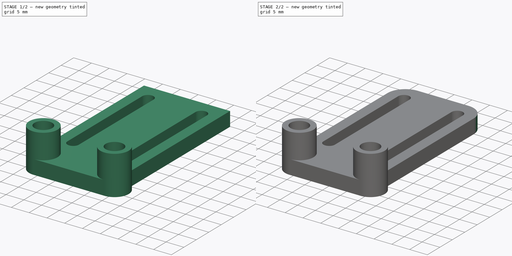
[diagram: build sequence overview — one tinted view per stage of 2, left to right]
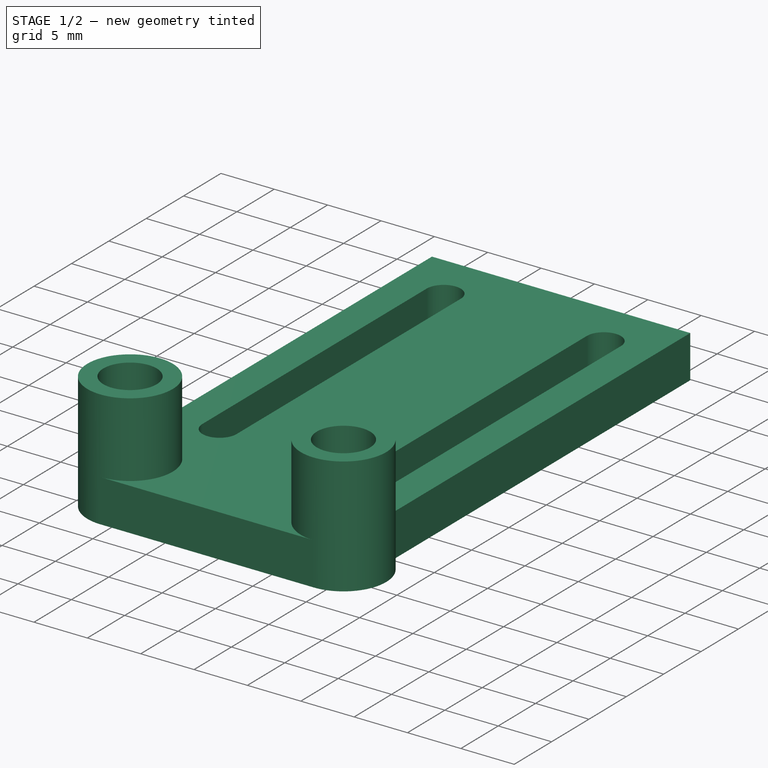
[diagram: stage 1 of 2 — iso view after this stage's code; geometry added in this stage tinted green]
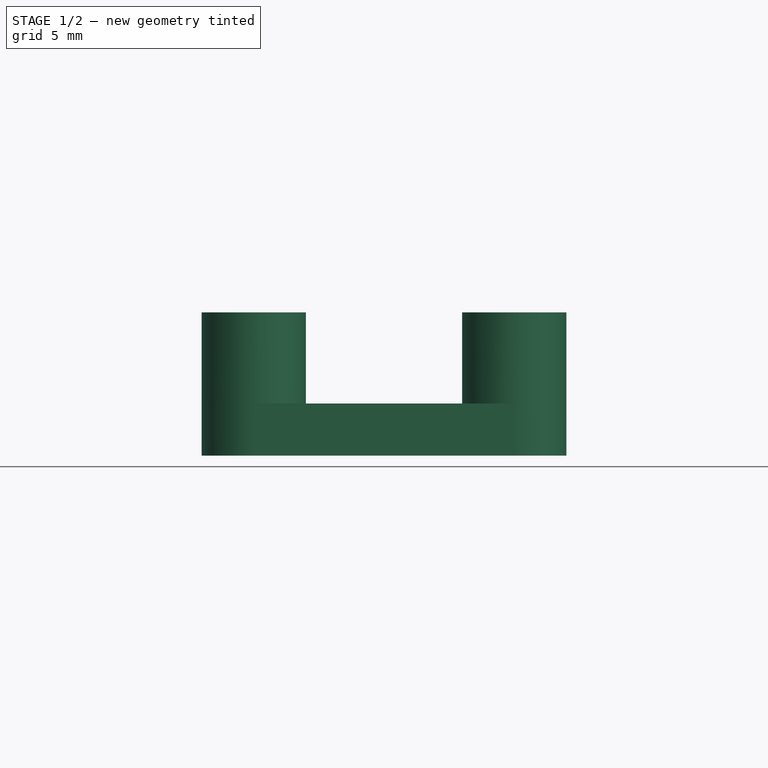
[diagram: stage 1 of 2 — front view after this stage's code; geometry added in this stage tinted green]
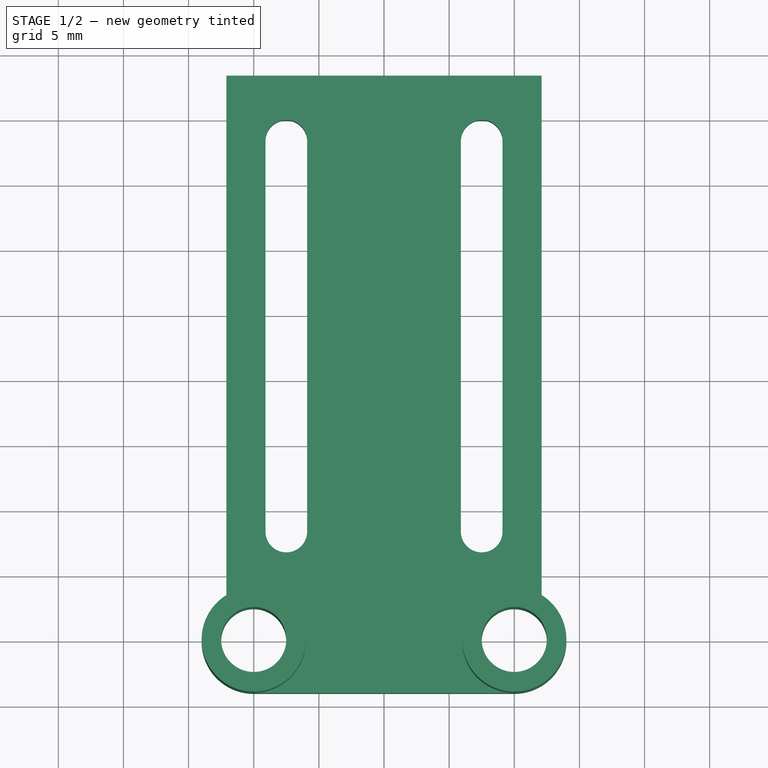
[diagram: stage 1 of 2 — top view after this stage's code; geometry added in this stage tinted green]
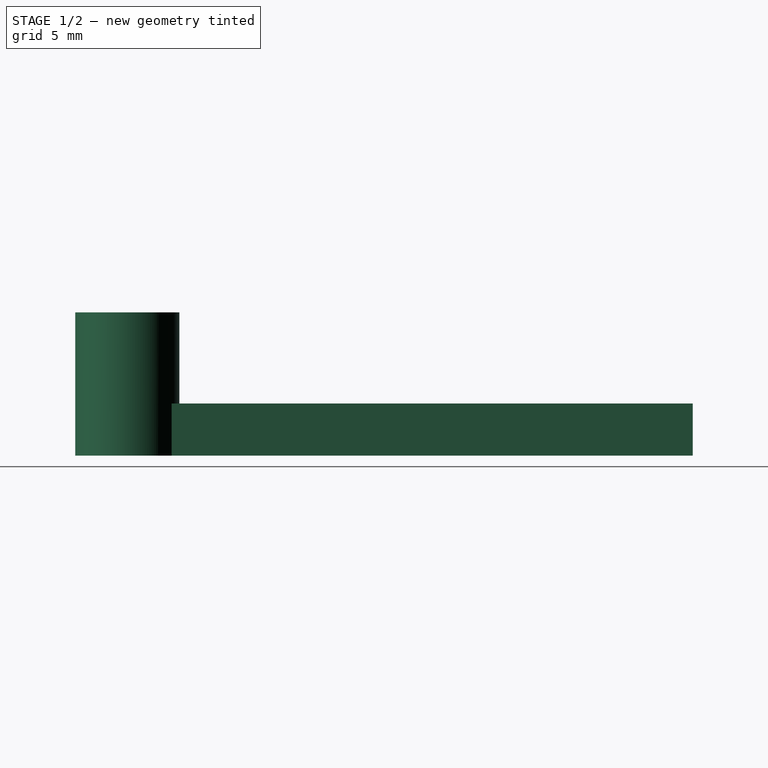
[diagram: stage 1 of 2 — right view after this stage's code; geometry added in this stage tinted green]
FCSTD DOCUMENT  (FreeCAD 1.0R38641 +468 (Git))
Label: endswitch_holder
License: All rights reserved
LicenseURL: https://en.wikipedia.org/wiki/All_rights_reserved
objects: Sketcher::SketchObject×2, PartDesign::Pad×2, PartDesign::Fillet×1, PartDesign::Body×1
note: 14 computed .brp shape members not serialized (recipe doc carries the construction recipe); baked Part::Feature solids carry a one-line shape summary decoded from their .brp

FEATURE [Sketcher::SketchObject] Sketch
  ArcFitTolerance = 1e-06
  AttachmentSupport = -> [XY_Plane]
  FullyConstrained = true
  MakeInternals = false
  MapMode = 5
  sketch-geometry (18):
    g0: Circle [constr] CenterX=-7.5 CenterY=38.4044 CenterZ=0 NormalX=0 NormalY=0 NormalZ=1 AngleXU=0 Radius=1.6
    g1: Circle [constr] CenterX=7.5 CenterY=38.4044 CenterZ=0 NormalX=0 NormalY=0 NormalZ=1 AngleXU=0 Radius=1.6
    g2: Circle CenterX=-10 CenterY=0 CenterZ=0 NormalX=0 NormalY=0 NormalZ=1 AngleXU=0 Radius=2.5
    g3: Circle CenterX=10 CenterY=0 CenterZ=0 NormalX=0 NormalY=0 NormalZ=1 AngleXU=0 Radius=2.5
    g4: LineSegment StartX=-10 StartY=-4 StartZ=0 EndX=10 EndY=-4 EndZ=0
    g5: ArcOfCircle CenterX=-7.5 CenterY=38.4044 CenterZ=0 NormalX=0 NormalY=0 NormalZ=1 AngleXU=0 Radius=1.6 StartAngle=-1.8e-15 EndAngle=3.14159
    g6: ArcOfCircle CenterX=-7.5 CenterY=8.40441 CenterZ=0 NormalX=0 NormalY=0 NormalZ=1 AngleXU=0 Radius=1.6 StartAngle=3.14159 EndAngle=6.28319
    g7: LineSegment StartX=-5.9 StartY=38.4044 StartZ=0 EndX=-5.9 EndY=8.40441 EndZ=0
    g8: LineSegment StartX=-9.1 StartY=38.4044 StartZ=0 EndX=-9.1 EndY=8.40441 EndZ=0
    g9: ArcOfCircle CenterX=7.5 CenterY=38.4044 CenterZ=0 NormalX=0 NormalY=0 NormalZ=1 AngleXU=0 Radius=1.6 StartAngle=-9e-16 EndAngle=3.14159
    g10: ArcOfCircle CenterX=7.5 CenterY=8.40441 CenterZ=0 NormalX=0 NormalY=0 NormalZ=1 AngleXU=0 Radius=1.6 StartAngle=3.14159 EndAngle=6.28319
    g11: LineSegment StartX=9.1 StartY=38.4044 StartZ=0 EndX=9.1 EndY=8.40441 EndZ=0
    g12: LineSegment StartX=5.9 StartY=38.4044 StartZ=0 EndX=5.9 EndY=8.40441 EndZ=0
    g13: LineSegment StartX=-12.1 StartY=3.40441 StartZ=0 EndX=-12.1 EndY=43.4044 EndZ=0
    g14: LineSegment StartX=-12.1 StartY=43.4044 StartZ=0 EndX=12.1 EndY=43.4044 EndZ=0
    g15: LineSegment StartX=12.1 StartY=43.4044 StartZ=0 EndX=12.1 EndY=3.40441 EndZ=0
    g16: ArcOfCircle CenterX=10 CenterY=0 CenterZ=0 NormalX=0 NormalY=0 NormalZ=1 AngleXU=0 Radius=4 StartAngle=4.71239 EndAngle=7.30127
    g17: ArcOfCircle CenterX=-10 CenterY=0 CenterZ=0 NormalX=0 NormalY=0 NormalZ=1 AngleXU=0 Radius=4 StartAngle=2.12351 EndAngle=4.71239
  constraints (44):
    c: Symmetric(g1,g0,g-2)
    c: Equal(g1,g0)
    c: Diameter(g1) = 3.2
    c: DistanceX(g0,g1) = 15
    c: PointOnObject(g2,g-1)
    c: Symmetric(g2,g3,g-1)
    c: Equal(g3,g2)
    c: Diameter(g3) = 5
    c: DistanceX(g2,g3) = 20
    c: Symmetric(g4,g4,g-2)
    c: Tangent(g5,g7) = 1.5708
    c: Tangent(g5,g8) = -1.5708
    c: Tangent(g6,g7) = 1.5708
    c: Tangent(g6,g8) = -1.5708
    c: Equal(g5,g6)
    c: Coincident(g5,g0)
    c: Vertical(g7)
    c: Tangent(g9,g11) = 1.5708
    c: Tangent(g9,g12) = -1.5708
    c: Tangent(g10,g11) = 1.5708
    c: Tangent(g10,g12) = -1.5708
    c: Equal(g9,g10)
    c: Coincident(g9,g1)
    c: Vertical(g11)
    c: Horizontal(g10,g6)
    c: Vertical(g13)
    c: Coincident(g13,g14)
    c: Coincident(g14,g15)
    c: Vertical(g15)
    c: Symmetric(g13,g14,g-2)
    c: DistanceX(g9,g14) = 3
    c: PointOnObject(g9,g1)
    c: DistanceY(g15,g10) = 5
    c: PointOnObject(g5,g0)
    c: Coincident(g16,g15)
    c: Coincident(g16,g4)
    c: Coincident(g17,g4)
    c: Coincident(g17,g13)
    c: Coincident(g2,g17)
    c: Coincident(g3,g16)
    c: Radius(g16) = 4
    c: Vertical(g3,g4)
    c: DistanceY(g15,g15) = 40
    c: DistanceY(g1,g14) = 5
FEATURE [PartDesign::Pad] Pad
  Direction = (0,0,1)
  Length = 4
  Length2 = 10
  Profile = -> Sketch
  ReferenceAxis = -> Sketch [N_Axis]
  Refine = true
  Suppressed = false
  Type = 0
FEATURE [Sketcher::SketchObject] Sketch001
  ArcFitTolerance = 1e-06
  AttachmentSupport = -> [Pad]
  ExternalGeometry = -> [Pad]
  FullyConstrained = true
  MakeInternals = false
  MapMode = 5
  Placement = pos=(0,0,4) rot=(0,0,1;0rad)
  sketch-geometry (4):
    g0: Circle CenterX=-10 CenterY=0 CenterZ=0 NormalX=0 NormalY=0 NormalZ=1 AngleXU=0 Radius=2.5
    g1: Circle CenterX=10 CenterY=0 CenterZ=0 NormalX=0 NormalY=0 NormalZ=1 AngleXU=0 Radius=2.5
    g2: Circle CenterX=10 CenterY=0 CenterZ=0 NormalX=0 NormalY=0 NormalZ=1 AngleXU=0 Radius=4
    g3: Circle CenterX=-10 CenterY=0 CenterZ=0 NormalX=0 NormalY=0 NormalZ=1 AngleXU=0 Radius=4
  constraints (8):
    c: Coincident(g0,g-3)
    c: Equal(g0,g-3)
    c: Coincident(g1,g-4)
    c: Equal(g1,g-4)
    c: Coincident(g2,g1)
    c: Coincident(g3,g0)
    c: Equal(g3,g2)
    c: PointOnObject(g-5,g3)
FEATURE [PartDesign::Pad] Pad001
  BaseFeature = -> Pad
  Direction = (0,0,1)
  Length = 7
  Length2 = 10
  Profile = -> Sketch001
  ReferenceAxis = -> Sketch001 [N_Axis]
  Refine = true
  Suppressed = false
  Type = 0
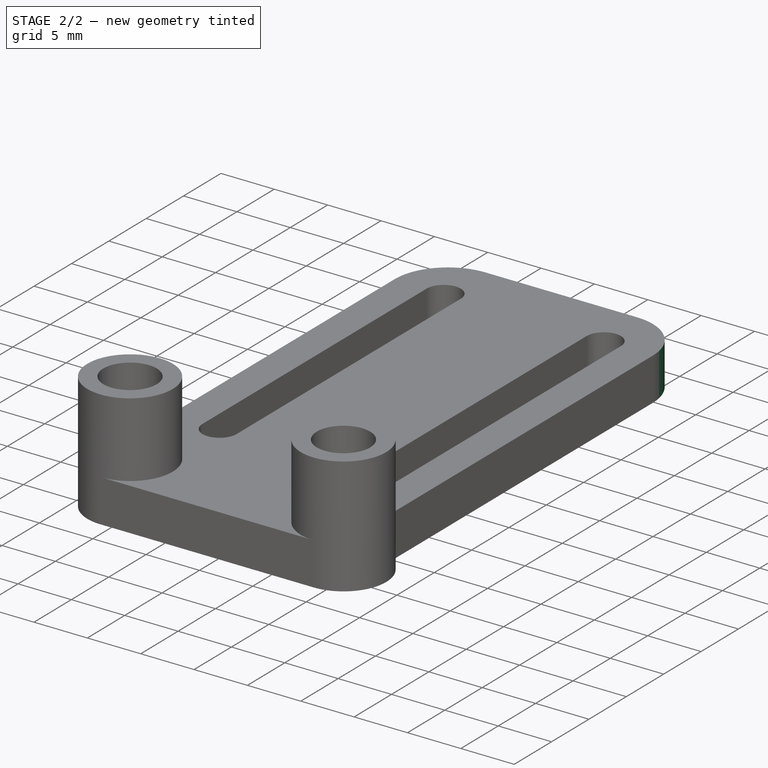
[diagram: stage 2 of 2 — iso view after this stage's code; geometry added in this stage tinted green]
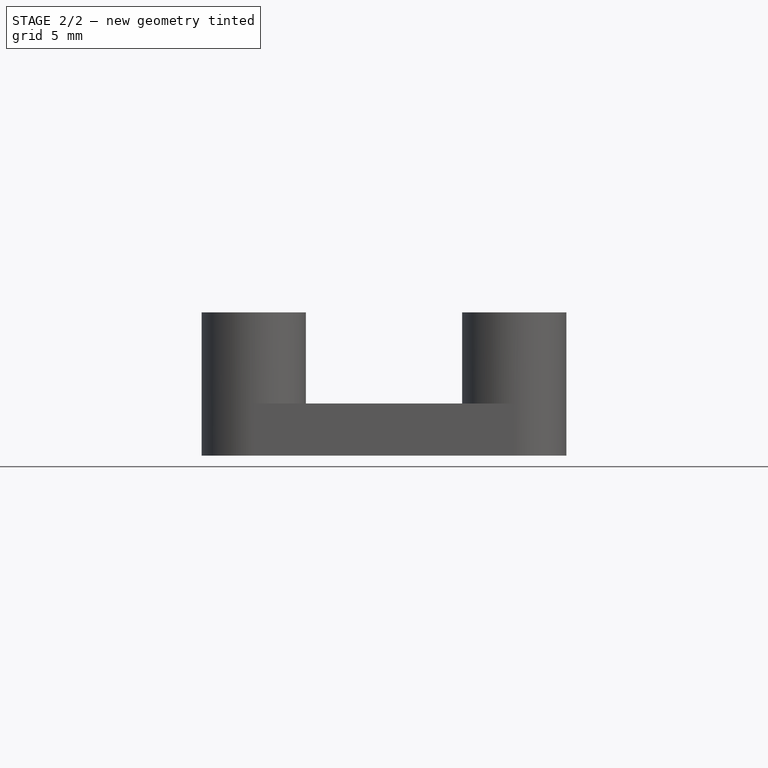
[diagram: stage 2 of 2 — front view after this stage's code; geometry added in this stage tinted green]
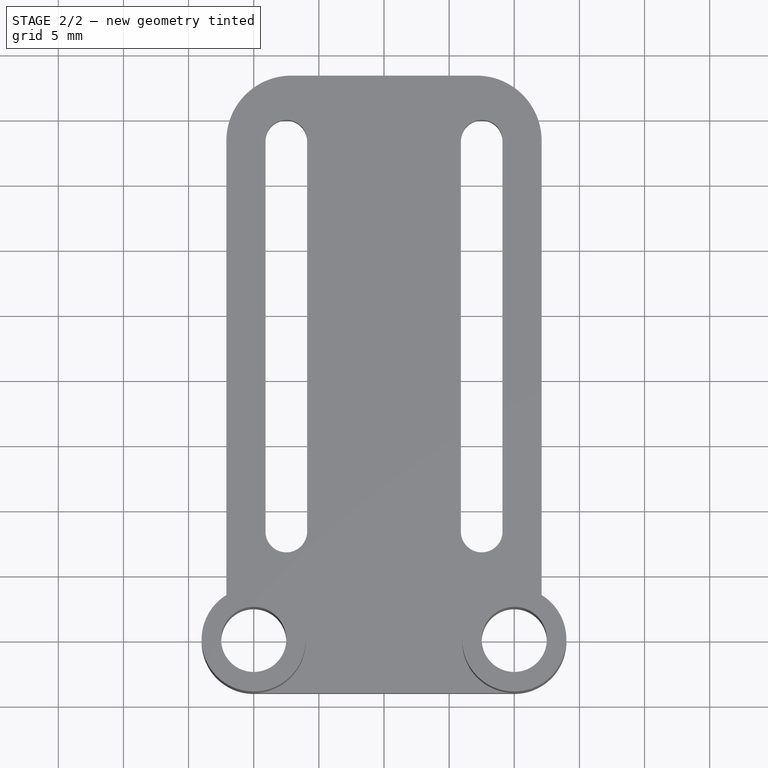
[diagram: stage 2 of 2 — top view after this stage's code; geometry added in this stage tinted green]
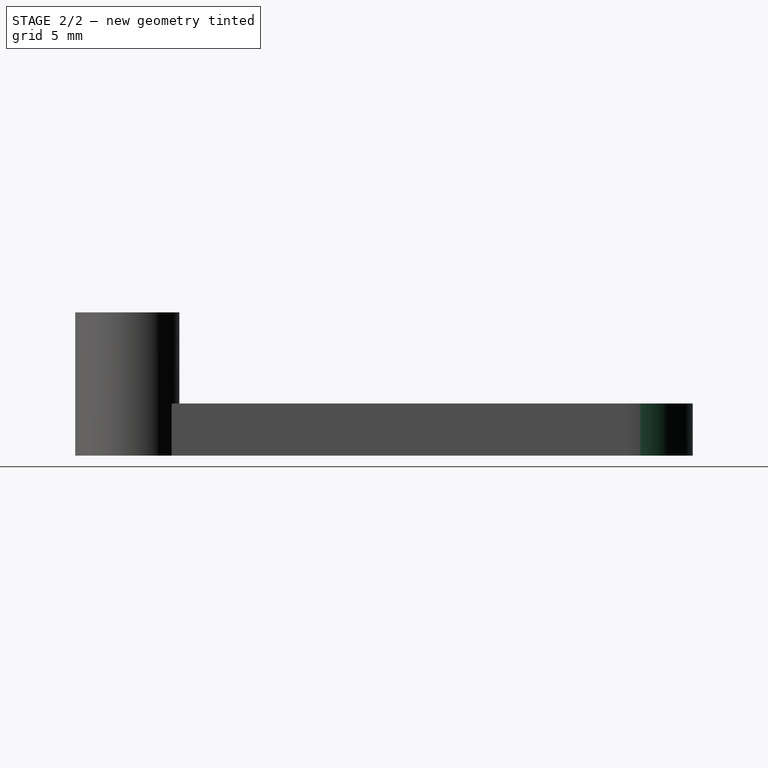
[diagram: stage 2 of 2 — right view after this stage's code; geometry added in this stage tinted green]
FEATURE [PartDesign::Fillet] Fillet
  Base = -> Pad001 [Edge22,Edge24]
  BaseFeature = -> Pad001
  Radius = 5
  Refine = true
  SupportTransform = false
  Suppressed = false
  UseAllEdges = false
FEATURE [PartDesign::Body] Body
  AllowCompound = false
  Group = -> [Sketch,Pad,Sketch001,Pad001,Fillet]
  Origin = -> Origin
  Tip = -> Fillet
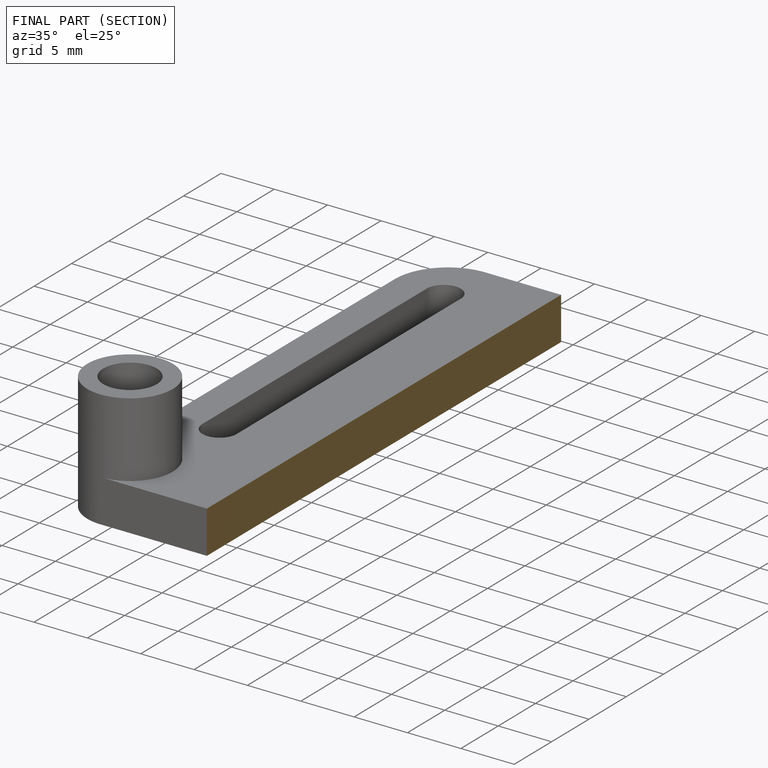
[diagram: finished part — half-section view (interior)]
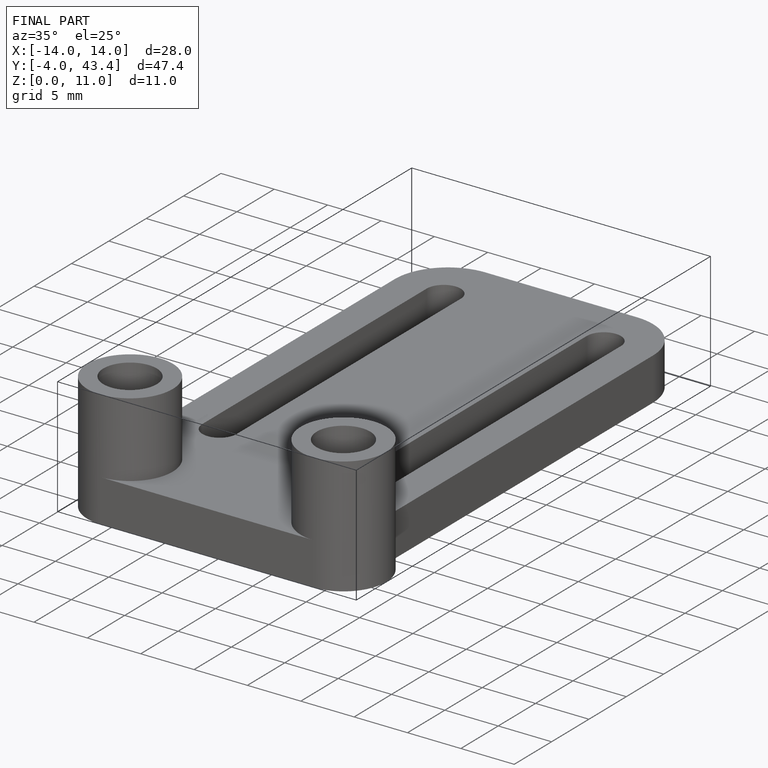
[diagram: finished part — iso view with bounding-box wireframe]
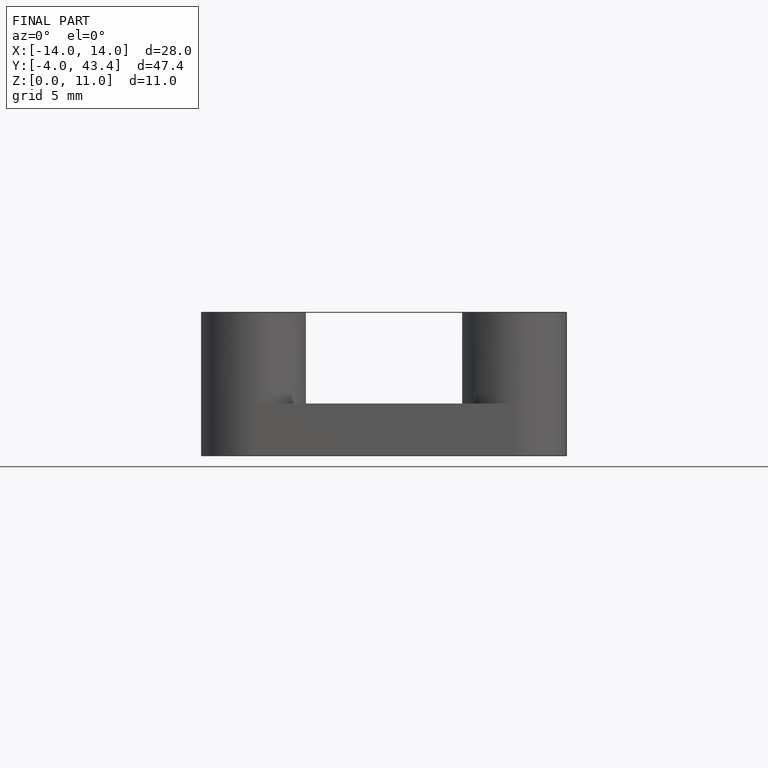
[diagram: finished part — front view with bounding-box wireframe]
